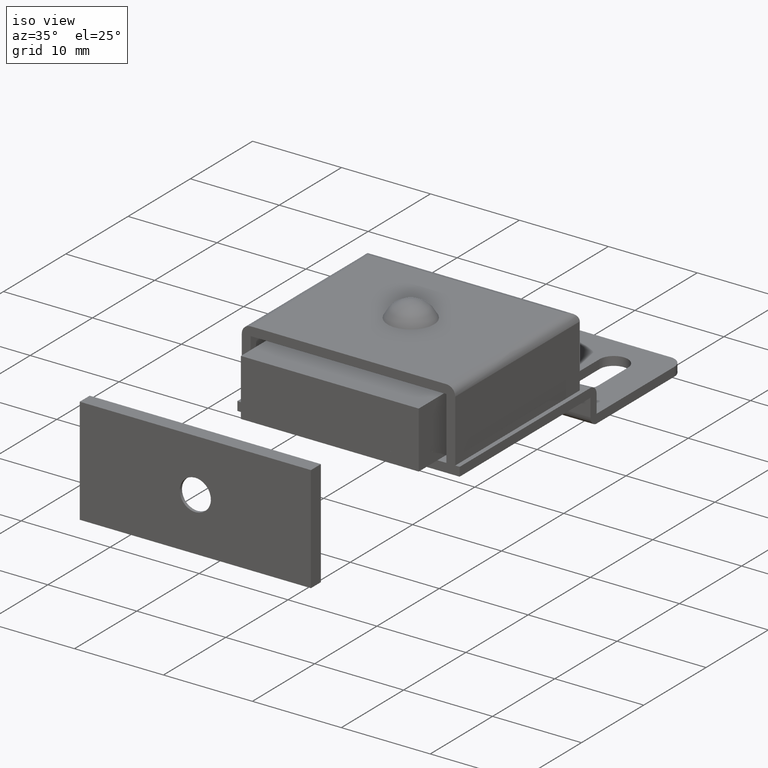
[diagram: clean part render]
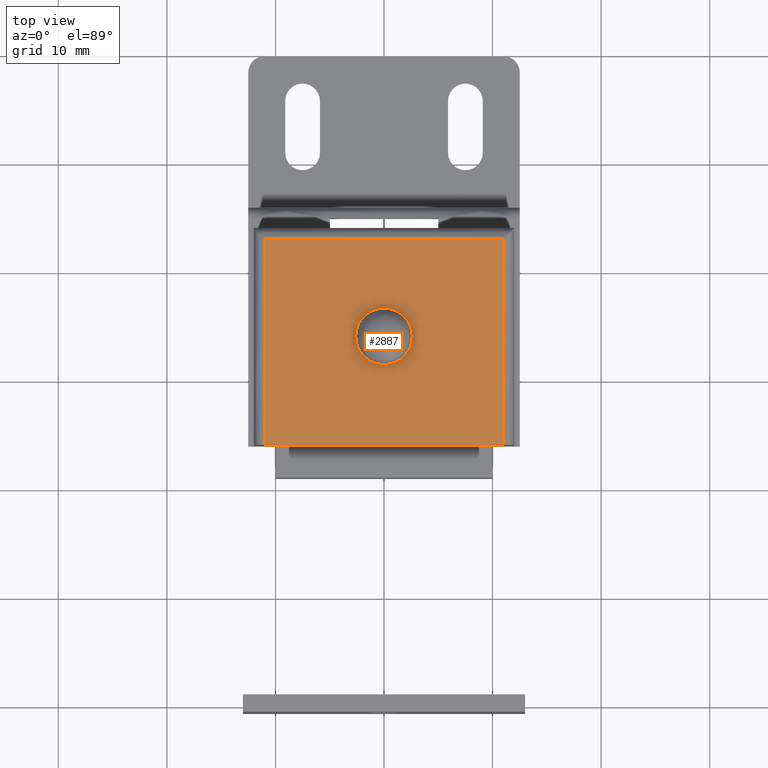
[diagram: tour spotlight — one face highlighted and labeled with its STEP entity id]
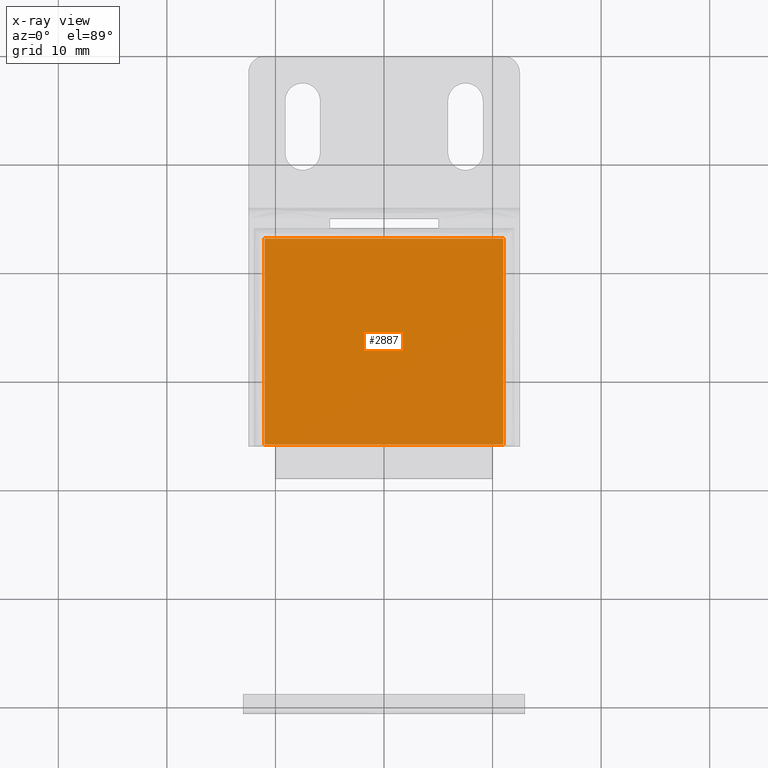
[diagram: x-ray of the same camera — body ghosted, this tour face saturated]
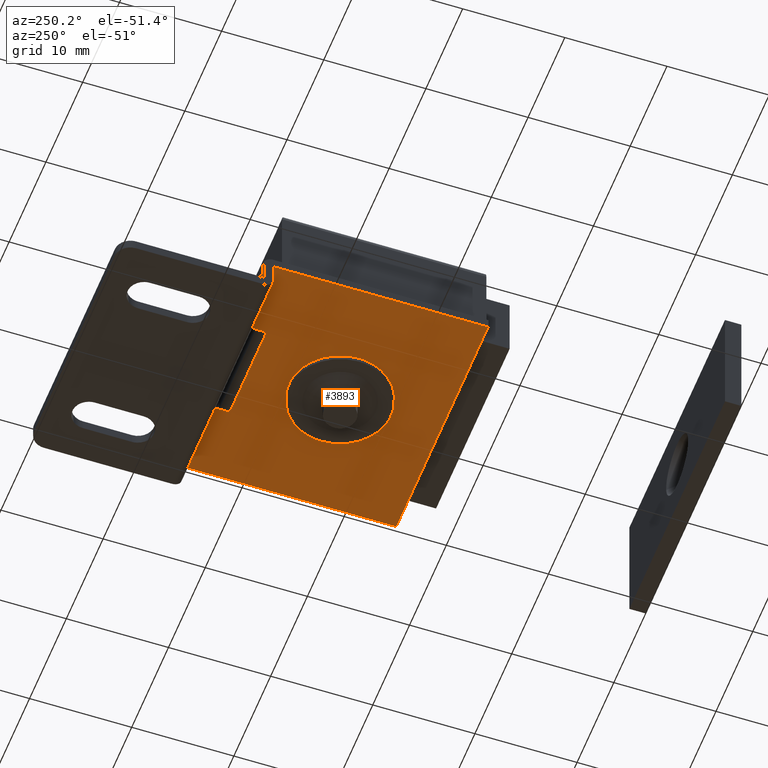
[diagram: tour spotlight — one face highlighted and labeled with its STEP entity id]
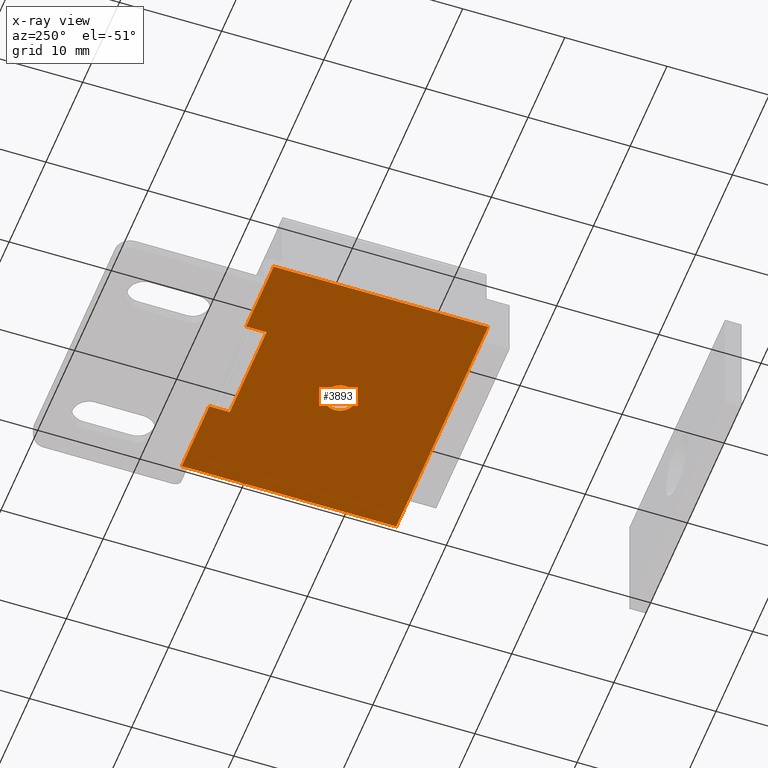
[diagram: x-ray of the same camera — body ghosted, this tour face saturated]
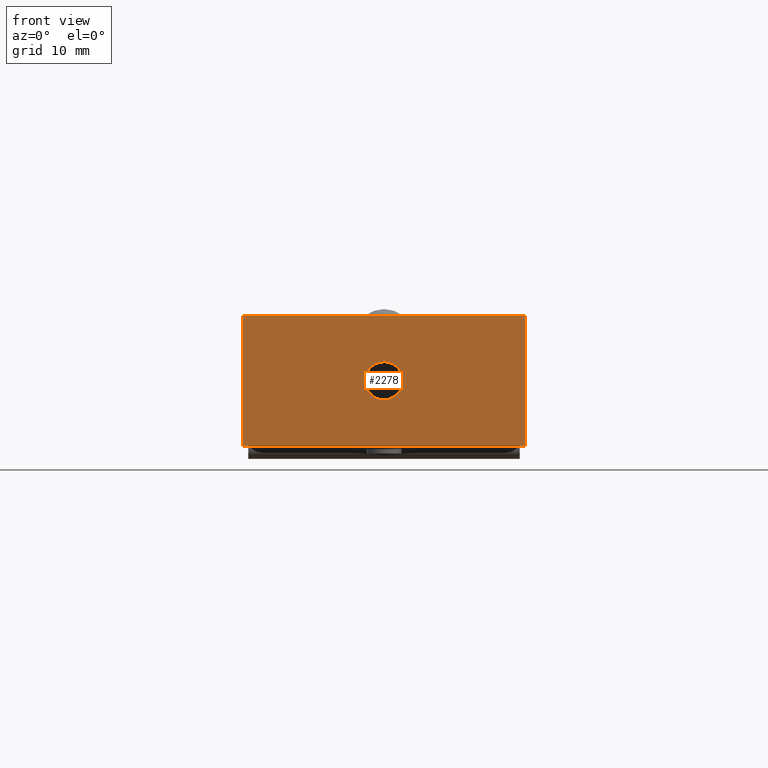
[diagram: tour spotlight — one face highlighted and labeled with its STEP entity id]
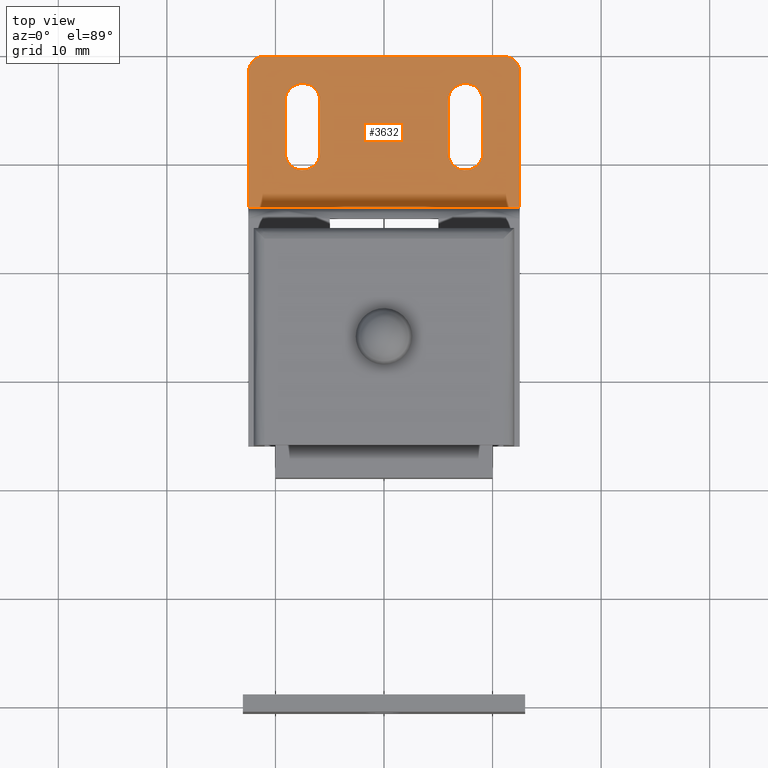
[diagram: tour spotlight — one face highlighted and labeled with its STEP entity id]
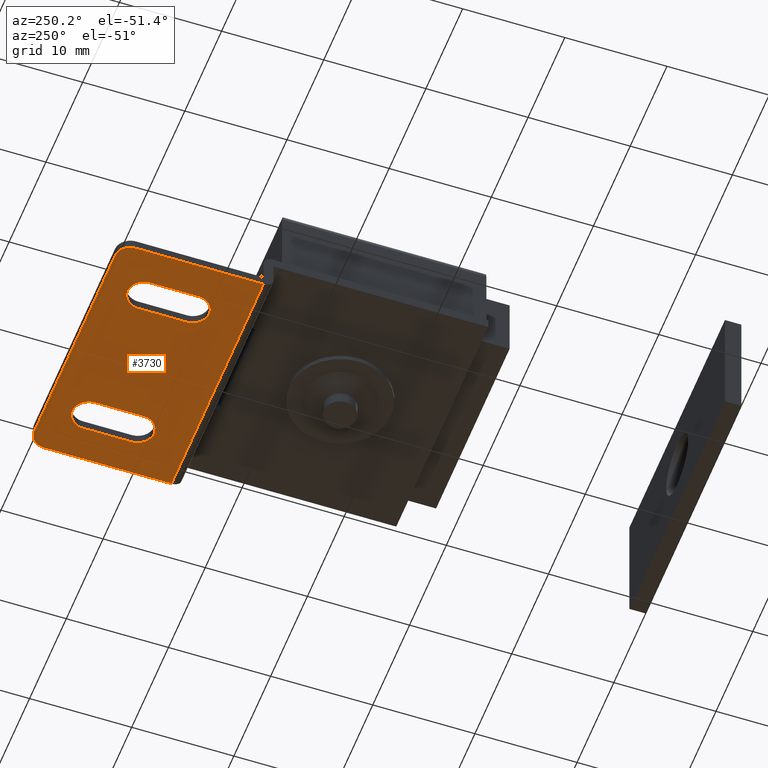
[diagram: tour spotlight — one face highlighted and labeled with its STEP entity id]
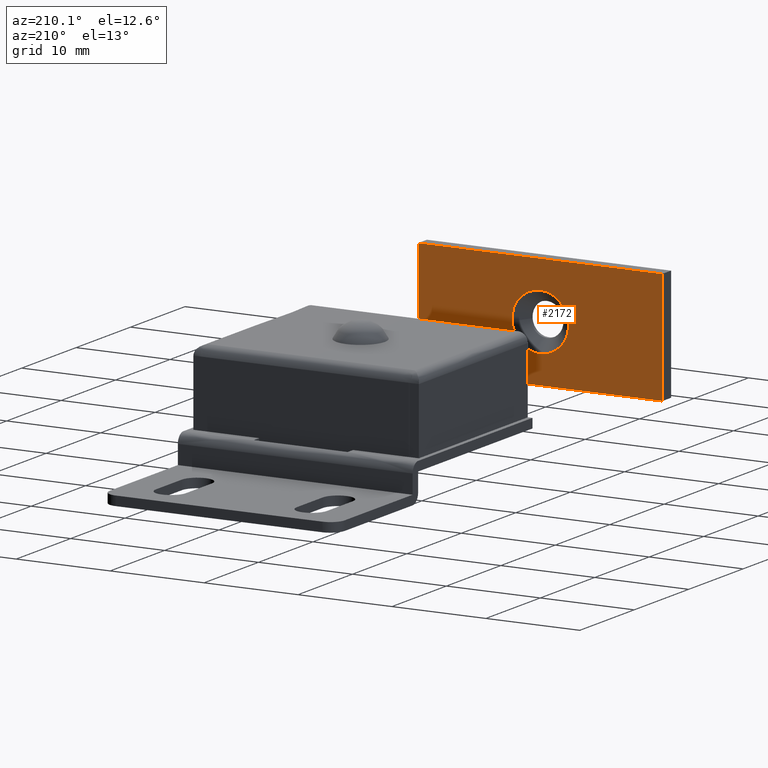
[diagram: tour spotlight — one face highlighted and labeled with its STEP entity id]
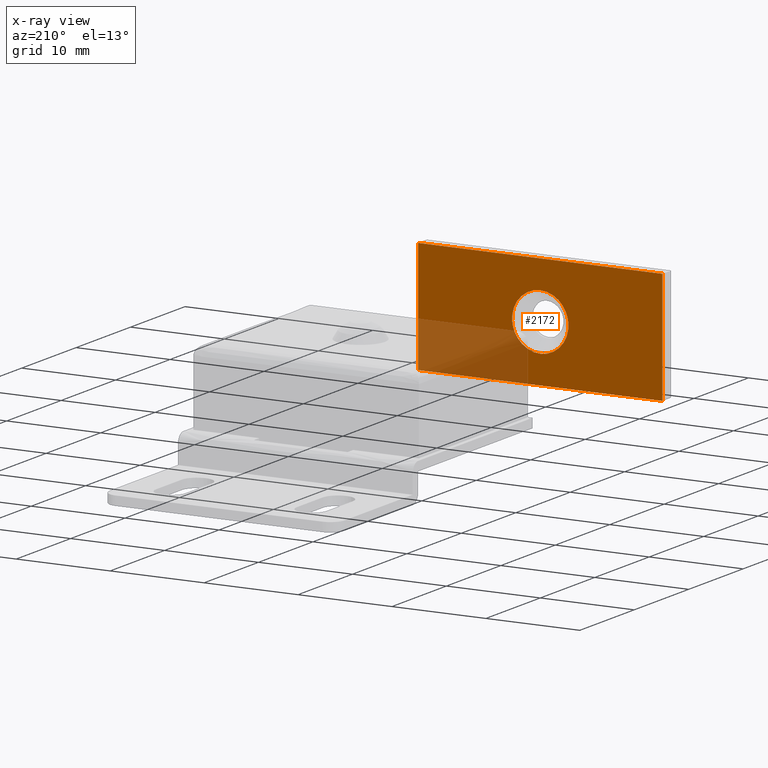
[diagram: x-ray of the same camera — body ghosted, this tour face saturated]
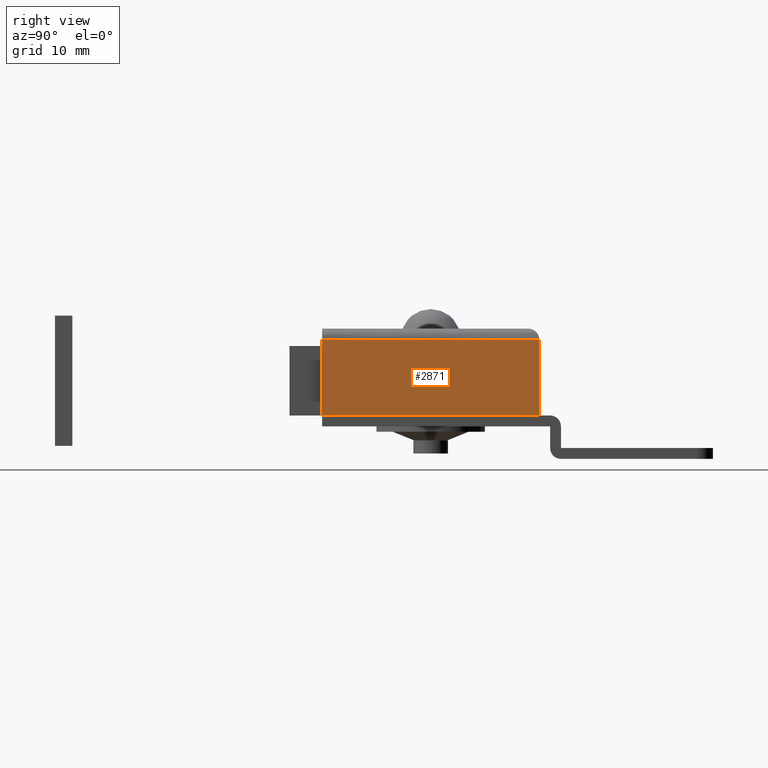
[diagram: tour spotlight — one face highlighted and labeled with its STEP entity id]
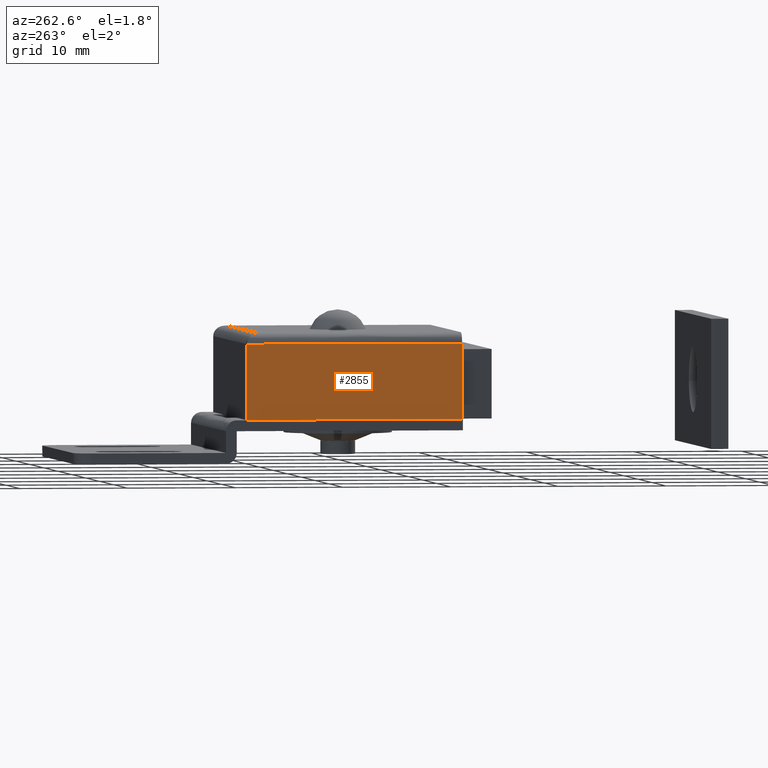
[diagram: tour spotlight — one face highlighted and labeled with its STEP entity id]
A machine part: a face-by-face anatomy tour. The part has 102 B-rep faces; the first image is the clean iso view, then the 8 largest visible faces are spotlighted one at a time (largest first), each with its STEP entity span.

Face 1 — top view, entity #2887. An x-ray twin of the same camera follows (body ghosted, this face saturated) — the face is partly hidden behind the body. In plain terms, the highlighted face is a freeform B-spline surface patch.
Definition (entity closure, byte-faithful):
#2603=CARTESIAN_POINT('',(11.0,-17.0,12.0));
#2604=VERTEX_POINT('',#2603);
#2639=CARTESIAN_POINT('',(-11.000002000000000,-17.0,12.0));
#2640=VERTEX_POINT('',#2639);
#2654=CARTESIAN_POINT('',(11.0,-17.0,12.0));
#2655=CARTESIAN_POINT('',(-11.000002000000000,-17.0,12.0));
#2656=QUASI_UNIFORM_CURVE('',1,(#2654,#2655),.UNSPECIFIED.,.F.,.U.);
#2657=EDGE_CURVE('',#2604,#2640,#2656,.T.);
#2676=CARTESIAN_POINT('',(-11.000001999999940,-36.0,12.0));
#2677=VERTEX_POINT('',#2676);
#2693=CARTESIAN_POINT('',(-11.000002000000000,-17.0,12.0));
#2694=CARTESIAN_POINT('',(-11.000001999999940,-36.0,12.0));
#2695=QUASI_UNIFORM_CURVE('',1,(#2693,#2694),.UNSPECIFIED.,.F.,.U.);
#2696=EDGE_CURVE('',#2640,#2677,#2695,.T.);
#2723=CARTESIAN_POINT('',(11.0,-36.0,12.0));
#2724=VERTEX_POINT('',#2723);
#2744=CARTESIAN_POINT('',(11.0,-36.0,12.0));
#2745=CARTESIAN_POINT('',(11.0,-17.0,12.0));
#2746=QUASI_UNIFORM_CURVE('',1,(#2744,#2745),.UNSPECIFIED.,.F.,.U.);
#2747=EDGE_CURVE('',#2724,#2604,#2746,.T.);
#2872=CARTESIAN_POINT('',(-12.098902057259730,-36.949049963174311,12.0));
#2873=CARTESIAN_POINT('',(12.098900647345770,-36.949049963174311,12.0));
#2874=CARTESIAN_POINT('',(-12.098902057259730,-16.050949527205969,12.0));
#2875=CARTESIAN_POINT('',(12.098900647345770,-16.050949527205969,12.0));
#2876=B_SPLINE_SURFACE_WITH_KNOTS('',1,1,((#2872,#2874),(#2873,#2875)),.UNSPECIFIED.,.F.,.F.,.U.,(2,2),(2,2),(0.0,24.197802704605490),(0.0,20.898100435968342),.UNSPECIFIED.);
#2877=CARTESIAN_POINT('',(11.0,-36.0,12.0));
#2878=CARTESIAN_POINT('',(-11.000001999999940,-36.0,12.0));
#2879=QUASI_UNIFORM_CURVE('',1,(#2877,#2878),.UNSPECIFIED.,.F.,.U.);
#2880=EDGE_CURVE('',#2724,#2677,#2879,.T.);
#2881=ORIENTED_EDGE('',*,*,#2880,.F.);
#2882=ORIENTED_EDGE('',*,*,#2747,.T.);
#2883=ORIENTED_EDGE('',*,*,#2657,.T.);
#2884=ORIENTED_EDGE('',*,*,#2696,.T.);
#2885=EDGE_LOOP('',(#2881,#2882,#2883,#2884));
#2886=FACE_OUTER_BOUND('',#2885,.T.);
#2887=ADVANCED_FACE('',(#2886),#2876,.T.);

Face 2 — auxiliary view, entity #3893. An x-ray twin of the same camera follows (body ghosted, this face saturated) — the face is partly hidden behind the body. In plain terms, the highlighted face is a freeform B-spline surface patch.
Definition (entity closure, byte-faithful):
#2958=CARTESIAN_POINT('',(1.500000000000000,-26.0,3.0));
#2959=VERTEX_POINT('',#2958);
#2960=CARTESIAN_POINT('',(0.117688643636623,-27.495376000596160,3.0));
#2961=VERTEX_POINT('',#2960);
#2962=CARTESIAN_POINT('',(1.500000000000000,-26.0,3.0));
#2963=CARTESIAN_POINT('',(1.500000000000000,-27.386585737445589,3.000000000000000));
#2964=CARTESIAN_POINT('',(0.117688643636623,-27.495376000596160,3.0));
#2972=(BOUNDED_CURVE()B_SPLINE_CURVE(2,(#2962,#2963,#2964),.UNSPECIFIED.,.F.,.U.)B_SPLINE_CURVE_WITH_KNOTS((3,3),(0.0,0.236331300627625),.UNSPECIFIED.)CURVE()GEOMETRIC_REPRESENTATION_ITEM()RATIONAL_B_SPLINE_CURVE((1.0,0.723120658611221,0.969723356161084))REPRESENTATION_ITEM(''));
#2973=EDGE_CURVE('',#2959,#2961,#2972,.T.);
#3014=CARTESIAN_POINT('',(-0.117688643636623,-24.504623999403830,3.0));
#3015=VERTEX_POINT('',#3014);
#3021=CARTESIAN_POINT('',(-0.117688643636623,-24.504623999403833,3.000000000000000));
#3022=CARTESIAN_POINT('',(-0.058935160534036,-24.500000000000000,3.000000000000001));
#3023=CARTESIAN_POINT('',(0.0,-24.500000000000000,3.0));
#3024=CARTESIAN_POINT('',(1.500000000000000,-24.500000000000004,3.0));
#3025=CARTESIAN_POINT('',(1.500000000000000,-26.0,3.0));
#3033=(BOUNDED_CURVE()B_SPLINE_CURVE(2,(#3021,#3022,#3023,#3024,#3025),.UNSPECIFIED.,.F.,.U.)B_SPLINE_CURVE_WITH_KNOTS((3,2,3),(0.736331300627625,0.750000000000000,1.0),.UNSPECIFIED.)CURVE()GEOMETRIC_REPRESENTATION_ITEM()RATIONAL_B_SPLINE_CURVE((0.969723356161084,0.983986122575326,1.0,0.707106781186548,1.0))REPRESENTATION_ITEM(''));
#3034=EDGE_CURVE('',#3015,#2959,#3033,.T.);
#3057=CARTESIAN_POINT('',(-1.500000000000000,-26.0,3.0));
#3058=VERTEX_POINT('',#3057);
#3059=CARTESIAN_POINT('',(0.117688643636623,-27.495376000596160,3.0));
#3060=CARTESIAN_POINT('',(0.058935160534036,-27.500000000000000,3.000000000000000));
#3061=CARTESIAN_POINT('',(0.0,-27.500000000000000,3.0));
#3062=CARTESIAN_POINT('',(-1.500000000000000,-27.500000000000004,3.0));
#3063=CARTESIAN_POINT('',(-1.500000000000000,-26.0,3.0));
#3071=(BOUNDED_CURVE()B_SPLINE_CURVE(2,(#3059,#3060,#3061,#3062,#3063),.UNSPECIFIED.,.F.,.U.)B_SPLINE_CURVE_WITH_KNOTS((3,2,3),(0.236331300627625,0.250000000000000,0.500000000000000),.UNSPECIFIED.)CURVE()GEOMETRIC_REPRESENTATION_ITEM()RATIONAL_B_SPLINE_CURVE((0.969723356161084,0.983986122575326,1.0,0.707106781186548,1.0))REPRESENTATION_ITEM(''));
#3072=EDGE_CURVE('',#2961,#3058,#3071,.T.);
#3074=CARTESIAN_POINT('',(-1.500000000000000,-26.0,3.0));
#3075=CARTESIAN_POINT('',(-1.500000000000000,-24.613414262554411,3.000000000000000));
#3076=CARTESIAN_POINT('',(-0.117688643636623,-24.504623999403833,3.000000000000000));
#3084=(BOUNDED_CURVE()B_SPLINE_CURVE(2,(#3074,#3075,#3076),.UNSPECIFIED.,.F.,.U.)B_SPLINE_CURVE_WITH_KNOTS((3,3),(0.500000000000000,0.736331300627625),.UNSPECIFIED.)CURVE()GEOMETRIC_REPRESENTATION_ITEM()RATIONAL_B_SPLINE_CURVE((1.0,0.723120658611221,0.969723356161084))REPRESENTATION_ITEM(''));
#3085=EDGE_CURVE('',#3058,#3015,#3084,.T.);
#3789=CARTESIAN_POINT('',(-12.500002000000000,-15.0,3.0));
#3790=VERTEX_POINT('',#3789);
#3797=CARTESIAN_POINT('',(12.500000000000000,-15.0,3.0));
#3798=VERTEX_POINT('',#3797);
#3804=CARTESIAN_POINT('',(5.0,-15.0,3.0));
#3805=VERTEX_POINT('',#3804);
#3806=CARTESIAN_POINT('',(12.500000000000000,-15.0,3.0));
#3807=CARTESIAN_POINT('',(5.0,-15.0,3.0));
#3808=QUASI_UNIFORM_CURVE('',1,(#3806,#3807),.UNSPECIFIED.,.F.,.U.);
#3809=EDGE_CURVE('',#3798,#3805,#3808,.T.);
#3825=CARTESIAN_POINT('',(-5.0,-15.0,3.0));
#3826=VERTEX_POINT('',#3825);
#3832=CARTESIAN_POINT('',(-5.0,-15.0,3.0));
#3833=CARTESIAN_POINT('',(-12.500002000000000,-15.0,3.0));
#3834=QUASI_UNIFORM_CURVE('',1,(#3832,#3833),.UNSPECIFIED.,.F.,.U.);
#3835=EDGE_CURVE('',#3826,#3790,#3834,.T.);
#3840=CARTESIAN_POINT('',(-13.748752051445150,-37.048949959297929,3.0));
#3841=CARTESIAN_POINT('',(13.748750721997450,-37.048949959297929,3.0));
#3842=CARTESIAN_POINT('',(-13.748752051445150,-13.951049477438181,3.0));
#3843=CARTESIAN_POINT('',(13.748750721997450,-13.951049477438181,3.0));
#3844=B_SPLINE_SURFACE_WITH_KNOTS('',1,1,((#3840,#3842),(#3841,#3843)),.UNSPECIFIED.,.F.,.F.,.U.,(2,2),(2,2),(0.0,27.497502773442601),(0.0,23.097900481859750),.UNSPECIFIED.);
#3845=CARTESIAN_POINT('',(5.0,-17.0,3.0));
#3846=VERTEX_POINT('',#3845);
#3847=CARTESIAN_POINT('',(-5.0,-17.0,3.0));
#3848=VERTEX_POINT('',#3847);
#3849=CARTESIAN_POINT('',(5.0,-17.0,3.0));
#3850=CARTESIAN_POINT('',(-5.0,-17.0,3.0));
#3851=QUASI_UNIFORM_CURVE('',1,(#3849,#3850),.UNSPECIFIED.,.F.,.U.);
#3852=EDGE_CURVE('',#3846,#3848,#3851,.T.);
#3853=ORIENTED_EDGE('',*,*,#3852,.F.);
#3854=CARTESIAN_POINT('',(5.0,-15.0,3.0));
#3855=CARTESIAN_POINT('',(5.0,-17.0,3.0));
#3856=QUASI_UNIFORM_CURVE('',1,(#3854,#3855),.UNSPECIFIED.,.F.,.U.);
#3857=EDGE_CURVE('',#3805,#3846,#3856,.T.);
#3858=ORIENTED_EDGE('',*,*,#3857,.F.);
#3859=ORIENTED_EDGE('',*,*,#3809,.F.);
#3860=CARTESIAN_POINT('',(12.500000000000000,-36.0,3.0));
#3861=VERTEX_POINT('',#3860);
#3862=CARTESIAN_POINT('',(12.500000000000000,-36.0,3.0));
#3863=CARTESIAN_POINT('',(12.500000000000000,-15.0,3.0));
#3864=QUASI_UNIFORM_CURVE('',1,(#3862,#3863),.UNSPECIFIED.,.F.,.U.);
#3865=EDGE_CURVE('',#3861,#3798,#3864,.T.);
#3866=ORIENTED_EDGE('',*,*,#3865,.F.);
#3867=CARTESIAN_POINT('',(-12.500002000000000,-36.0,3.0));
#3868=VERTEX_POINT('',#3867);
#3869=CARTESIAN_POINT('',(12.500000000000000,-36.0,3.0));
#3870=CARTESIAN_POINT('',(-12.500002000000000,-36.0,3.0));
#3871=QUASI_UNIFORM_CURVE('',1,(#3869,#3870),.UNSPECIFIED.,.F.,.U.);
#3872=EDGE_CURVE('',#3861,#3868,#3871,.T.);
#3873=ORIENTED_EDGE('',*,*,#3872,.T.);
#3874=CARTESIAN_POINT('',(-12.500002000000000,-36.0,3.0));
#3875=CARTESIAN_POINT('',(-12.500002000000000,-15.0,3.0));
#3876=QUASI_UNIFORM_CURVE('',1,(#3874,#3875),.UNSPECIFIED.,.F.,.U.);
#3877=EDGE_CURVE('',#3868,#3790,#3876,.T.);
#3878=ORIENTED_EDGE('',*,*,#3877,.T.);
#3879=ORIENTED_EDGE('',*,*,#3835,.F.);
#3880=CARTESIAN_POINT('',(-5.0,-17.0,3.0));
#3881=CARTESIAN_POINT('',(-5.0,-15.0,3.0));
#3882=QUASI_UNIFORM_CURVE('',1,(#3880,#3881),.UNSPECIFIED.,.F.,.U.);
#3883=EDGE_CURVE('',#3848,#3826,#3882,.T.);
#3884=ORIENTED_EDGE('',*,*,#3883,.F.);
#3885=EDGE_LOOP('',(#3853,#3858,#3859,#3866,#3873,#3878,#3879,#3884));
#3886=FACE_OUTER_BOUND('',#3885,.T.);
#3887=ORIENTED_EDGE('',*,*,#3085,.F.);
#3888=ORIENTED_EDGE('',*,*,#3072,.F.);
#3889=ORIENTED_EDGE('',*,*,#2973,.F.);
#3890=ORIENTED_EDGE('',*,*,#3034,.F.);
#3891=EDGE_LOOP('',(#3887,#3888,#3889,#3890));
#3892=FACE_BOUND('',#3891,.T.);
#3893=ADVANCED_FACE('',(#3886,#3892),#3844,.F.);

Face 3 — front view, entity #2278. In plain terms, the highlighted face is a freeform B-spline surface patch.
Definition (entity closure, byte-faithful):
#1837=CARTESIAN_POINT('',(1.746735897225612,-60.600005999999951,7.093162055607094));
#1838=VERTEX_POINT('',#1837);
#1839=CARTESIAN_POINT('',(0.0,-60.600005999999951,8.949997000000000));
#1840=VERTEX_POINT('',#1839);
#1841=CARTESIAN_POINT('',(1.746735897225612,-60.600005999999958,7.093162055607094));
#1842=CARTESIAN_POINT('',(1.750000000000000,-60.600005999999951,7.146529664123725));
#1843=CARTESIAN_POINT('',(1.750000000000000,-60.600005999999951,7.199997000000000));
#1844=CARTESIAN_POINT('',(1.750000000000000,-60.600005999999951,8.949997000000000));
#1845=CARTESIAN_POINT('',(0.0,-60.600005999999951,8.949997000000000));
#1853=(BOUNDED_CURVE()B_SPLINE_CURVE(2,(#1841,#1842,#1843,#1844,#1845),.UNSPECIFIED.,.F.,.U.)B_SPLINE_CURVE_WITH_KNOTS((3,2,3),(0.239332962221530,0.250000000000000,0.500000000000000),.UNSPECIFIED.)CURVE()GEOMETRIC_REPRESENTATION_ITEM()RATIONAL_B_SPLINE_CURVE((0.976072041629398,0.987502787879436,1.0,0.707106781186547,1.0))REPRESENTATION_ITEM(''));
#1854=EDGE_CURVE('',#1838,#1840,#1853,.T.);
#1856=CARTESIAN_POINT('',(-1.746735897225612,-60.600005999999951,7.306831944392906));
#1857=VERTEX_POINT('',#1856);
#1858=CARTESIAN_POINT('',(0.0,-60.600005999999951,8.949997000000000));
#1859=CARTESIAN_POINT('',(-1.646235616889599,-60.600005999999951,8.949997000000000));
#1860=CARTESIAN_POINT('',(-1.746735897225612,-60.600005999999958,7.306831944392907));
#1868=(BOUNDED_CURVE()B_SPLINE_CURVE(2,(#1858,#1859,#1860),.UNSPECIFIED.,.F.,.U.)B_SPLINE_CURVE_WITH_KNOTS((3,3),(0.500000000000000,0.739332962221530),.UNSPECIFIED.)CURVE()GEOMETRIC_REPRESENTATION_ITEM()RATIONAL_B_SPLINE_CURVE((1.0,0.719603993307111,0.976072041629398))REPRESENTATION_ITEM(''));
#1869=EDGE_CURVE('',#1840,#1857,#1868,.T.);
#1936=CARTESIAN_POINT('',(0.0,-60.600005999999951,5.449997000000000));
#1937=VERTEX_POINT('',#1936);
#1938=CARTESIAN_POINT('',(0.0,-60.600005999999951,5.449997000000000));
#1939=CARTESIAN_POINT('',(1.646235616889599,-60.600005999999951,5.449997000000001));
#1940=CARTESIAN_POINT('',(1.746735897225612,-60.600005999999958,7.093162055607094));
#1948=(BOUNDED_CURVE()B_SPLINE_CURVE(2,(#1938,#1939,#1940),.UNSPECIFIED.,.F.,.U.)B_SPLINE_CURVE_WITH_KNOTS((3,3),(0.0,0.239332962221530),.UNSPECIFIED.)CURVE()GEOMETRIC_REPRESENTATION_ITEM()RATIONAL_B_SPLINE_CURVE((1.0,0.719603993307111,0.976072041629398))REPRESENTATION_ITEM(''));
#1949=EDGE_CURVE('',#1937,#1838,#1948,.T.);
#1983=CARTESIAN_POINT('',(-1.746735897225612,-60.600005999999951,7.306831944392907));
#1984=CARTESIAN_POINT('',(-1.750000000000000,-60.600005999999965,7.253464335876275));
#1985=CARTESIAN_POINT('',(-1.750000000000000,-60.600005999999951,7.199997000000000));
#1986=CARTESIAN_POINT('',(-1.750000000000000,-60.600005999999951,5.449997000000000));
#1987=CARTESIAN_POINT('',(0.0,-60.600005999999951,5.449997000000000));
#1995=(BOUNDED_CURVE()B_SPLINE_CURVE(2,(#1983,#1984,#1985,#1986,#1987),.UNSPECIFIED.,.F.,.U.)B_SPLINE_CURVE_WITH_KNOTS((3,2,3),(0.739332962221530,0.750000000000000,1.0),.UNSPECIFIED.)CURVE()GEOMETRIC_REPRESENTATION_ITEM()RATIONAL_B_SPLINE_CURVE((0.976072041629398,0.987502787879436,1.0,0.707106781186547,1.0))REPRESENTATION_ITEM(''));
#1996=EDGE_CURVE('',#1857,#1937,#1995,.T.);
#2179=CARTESIAN_POINT('',(-13.0,-60.600005999999887,13.199997000000000));
#2180=VERTEX_POINT('',#2179);
#2186=CARTESIAN_POINT('',(13.0,-60.600005999999887,13.199997000000000));
#2187=VERTEX_POINT('',#2186);
#2188=CARTESIAN_POINT('',(13.0,-60.600005999999887,13.199997000000000));
#2189=CARTESIAN_POINT('',(-13.0,-60.600005999999887,13.199997000000000));
#2190=QUASI_UNIFORM_CURVE('',1,(#2188,#2189),.UNSPECIFIED.,.F.,.U.);
#2191=EDGE_CURVE('',#2187,#2180,#2190,.T.);
#2208=CARTESIAN_POINT('',(13.0,-60.600005999999887,1.199996999999910));
#2209=VERTEX_POINT('',#2208);
#2210=CARTESIAN_POINT('',(13.0,-60.600005999999887,1.199996999999910));
#2211=CARTESIAN_POINT('',(13.0,-60.600005999999887,13.199997000000000));
#2212=QUASI_UNIFORM_CURVE('',1,(#2210,#2211),.UNSPECIFIED.,.F.,.U.);
#2213=EDGE_CURVE('',#2209,#2187,#2212,.T.);
#2230=CARTESIAN_POINT('',(-13.0,-60.600005999999887,1.199996999999910));
#2231=VERTEX_POINT('',#2230);
#2232=CARTESIAN_POINT('',(-13.0,-60.600005999999887,1.199996999999910));
#2233=CARTESIAN_POINT('',(13.0,-60.600005999999887,1.199996999999910));
#2234=QUASI_UNIFORM_CURVE('',1,(#2232,#2233),.UNSPECIFIED.,.F.,.U.);
#2235=EDGE_CURVE('',#2231,#2209,#2234,.T.);
#2252=CARTESIAN_POINT('',(-13.0,-60.600005999999887,13.199997000000000));
#2253=CARTESIAN_POINT('',(-13.0,-60.600005999999887,1.199996999999910));
#2254=QUASI_UNIFORM_CURVE('',1,(#2252,#2253),.UNSPECIFIED.,.F.,.U.);
#2255=EDGE_CURVE('',#2180,#2231,#2254,.T.);
#2261=CARTESIAN_POINT('',(-14.298699949606959,-60.600005999999887,13.799396976741679));
#2262=CARTESIAN_POINT('',(14.298700646981301,-60.600005999999887,13.799396976741679));
#2263=CARTESIAN_POINT('',(-14.298699949606959,-60.600005999999887,0.600596701393152));
#2264=CARTESIAN_POINT('',(14.298700646981301,-60.600005999999887,0.600596701393152));
#2265=B_SPLINE_SURFACE_WITH_KNOTS('',1,1,((#2261,#2263),(#2262,#2264)),.UNSPECIFIED.,.F.,.F.,.U.,(2,2),(2,2),(0.0,28.597400596588258),(0.0,13.198800275348530),.UNSPECIFIED.);
#2266=ORIENTED_EDGE('',*,*,#2255,.T.);
#2267=ORIENTED_EDGE('',*,*,#2235,.T.);
#2268=ORIENTED_EDGE('',*,*,#2213,.T.);
#2269=ORIENTED_EDGE('',*,*,#2191,.T.);
#2270=EDGE_LOOP('',(#2266,#2267,#2268,#2269));
#2271=FACE_OUTER_BOUND('',#2270,.T.);
#2272=ORIENTED_EDGE('',*,*,#1869,.F.);
#2273=ORIENTED_EDGE('',*,*,#1854,.F.);
#2274=ORIENTED_EDGE('',*,*,#1949,.F.);
#2275=ORIENTED_EDGE('',*,*,#1996,.F.);
#2276=EDGE_LOOP('',(#2272,#2273,#2274,#2275));
#2277=FACE_BOUND('',#2276,.T.);
#2278=ADVANCED_FACE('',(#2271,#2277),#2265,.F.);

Face 4 — top view, entity #3632. In plain terms, the highlighted face is a freeform B-spline surface patch.
Definition (entity closure, byte-faithful):
#3129=CARTESIAN_POINT('',(9.099997999999999,-4.102505821343061,0.999999999999890));
#3130=VERTEX_POINT('',#3129);
#3143=CARTESIAN_POINT('',(9.099997999999999,-8.902523821342580,0.999999999999915));
#3144=VERTEX_POINT('',#3143);
#3150=CARTESIAN_POINT('',(9.099997999999999,-4.102505821343061,0.999999999999890));
#3151=CARTESIAN_POINT('',(9.099997999999999,-8.902523821342580,0.999999999999915));
#3152=QUASI_UNIFORM_CURVE('',1,(#3150,#3151),.UNSPECIFIED.,.F.,.U.);
#3153=EDGE_CURVE('',#3130,#3144,#3152,.T.);
#3199=CARTESIAN_POINT('',(5.900001000000001,-8.901782854111849,0.999999999999890));
#3200=VERTEX_POINT('',#3199);
#3206=CARTESIAN_POINT('',(9.099997999999999,-8.902523821342580,0.999999999999915));
#3207=CARTESIAN_POINT('',(9.099820871807671,-9.046389816877028,0.999999999999876));
#3208=CARTESIAN_POINT('',(9.068317391553897,-9.275182769020832,0.999999999999895));
#3209=CARTESIAN_POINT('',(8.951020876367924,-9.595516673373098,0.999999999999889));
#3210=CARTESIAN_POINT('',(8.813589662796073,-9.827429389118157,0.999999999999894));
#3211=CARTESIAN_POINT('',(8.630598555663809,-10.041784671757419,0.999999999999886));
#3212=CARTESIAN_POINT('',(8.400496951971929,-10.237528643521440,0.999999999999897));
#3213=CARTESIAN_POINT('',(8.109861675614372,-10.392626563201761,0.999999999999878));
#3214=CARTESIAN_POINT('',(7.812850052407559,-10.476602872750201,0.999999999999907));
#3215=CARTESIAN_POINT('',(7.513066253831764,-10.509764857999420,0.999999999999864));
#3216=CARTESIAN_POINT('',(7.184923505677737,-10.483501023494860,0.999999999999915));
#3217=CARTESIAN_POINT('',(6.827866356053756,-10.367985261669631,0.999999999999875));
#3218=CARTESIAN_POINT('',(6.535255909629839,-10.190231777016390,0.999999999999901));
#3219=CARTESIAN_POINT('',(6.304354904864532,-9.975888222319833,0.999999999999925));
#3220=CARTESIAN_POINT('',(6.114866867973176,-9.723973975503885,0.999999999999867));
#3221=CARTESIAN_POINT('',(5.947889871748584,-9.365968358648264,0.999999999999907));
#3222=CARTESIAN_POINT('',(5.900089378964973,-9.071817291087845,0.999999999999885));
#3223=CARTESIAN_POINT('',(5.900001000000001,-8.901782854111849,0.999999999999890));
#3224=B_SPLINE_CURVE_WITH_KNOTS('',3,(#3206,#3207,#3208,#3209,#3210,#3211,#3212,#3213,#3214,#3215,#3216,#3217,#3218,#3219,#3220,#3221,#3222,#3223),.UNSPECIFIED.,.F.,.U.,(4,1,1,1,1,1,1,1,1,1,1,1,1,1,1,4),(0.000000146276514,0.431580902580179,0.686629758117082,1.020142479972553,1.235947527819700,1.530228634373864,1.922601862040750,2.216861311987671,2.452281420515639,2.824999259385126,3.197764027181892,3.570509114899165,3.845171156686052,4.139452530984162,4.512192054012317,5.022261027141370),.UNSPECIFIED.);
#3225=EDGE_CURVE('',#3144,#3200,#3224,.T.);
#3243=CARTESIAN_POINT('',(5.900001000000001,-4.101764854110971,0.999999999999890));
#3244=VERTEX_POINT('',#3243);
#3250=CARTESIAN_POINT('',(5.900001000000001,-8.901782854111849,0.999999999999890));
#3251=CARTESIAN_POINT('',(5.900001000000001,-4.101764854110971,0.999999999999890));
#3252=QUASI_UNIFORM_CURVE('',1,(#3250,#3251),.UNSPECIFIED.,.F.,.U.);
#3253=EDGE_CURVE('',#3200,#3244,#3252,.T.);
#3299=CARTESIAN_POINT('',(5.900001000000001,-4.101764854110971,0.999999999999890));
#3300=CARTESIAN_POINT('',(5.899727001335189,-3.937985943822921,0.999999999999896));
#3301=CARTESIAN_POINT('',(5.935081740630326,-3.708730972368753,0.999999999999883));
#3302=CARTESIAN_POINT('',(6.055309560461657,-3.396348892101572,0.999999999999893));
#3303=CARTESIAN_POINT('',(6.197649160470382,-3.151707462121520,0.999999999999888));
#3304=CARTESIAN_POINT('',(6.390853765741641,-2.935702806116950,0.999999999999884));
#3305=CARTESIAN_POINT('',(6.632886057900922,-2.744282483168984,0.999999999999895));
#3306=CARTESIAN_POINT('',(6.947948233181777,-2.578201813897969,0.999999999999900));
#3307=CARTESIAN_POINT('',(7.335616724690610,-2.491184142414321,0.999999999999866));
#3308=CARTESIAN_POINT('',(7.717461502966176,-2.503044234072732,0.999999999999914));
#3309=CARTESIAN_POINT('',(7.998969194659307,-2.571864843100796,0.999999999999875));
#3310=CARTESIAN_POINT('',(8.270345696642677,-2.688380704040175,0.999999999999897));
#3311=CARTESIAN_POINT('',(8.540929036203231,-2.864659288743419,0.999999999999890));
#3312=CARTESIAN_POINT('',(8.807667277793339,-3.148791406688559,0.999999999999882));
#3313=CARTESIAN_POINT('',(8.988669620844853,-3.478608476531418,0.999999999999907));
#3314=CARTESIAN_POINT('',(9.081714625841066,-3.801155370530849,0.999999999999869));
#3315=CARTESIAN_POINT('',(9.100161760779610,-4.004251063597915,0.999999999999863));
#3316=CARTESIAN_POINT('',(9.099997999999999,-4.102505821343061,0.999999999999890));
#3317=B_SPLINE_CURVE_WITH_KNOTS('',3,(#3299,#3300,#3301,#3302,#3303,#3304,#3305,#3306,#3307,#3308,#3309,#3310,#3311,#3312,#3313,#3314,#3315,#3316),.UNSPECIFIED.,.F.,.U.,(4,1,1,1,1,1,1,1,1,1,1,1,1,1,1,4),(0.000000119033451,0.491298527336037,0.687818192618438,1.002253636411213,1.336334990422152,1.552508060589529,1.925886995335932,2.397534542452180,2.731626501168354,3.065711612171165,3.262226504042067,3.615945084742921,4.028648586954193,4.421689287993845,4.736132333937730,5.030898543473447),.UNSPECIFIED.);
#3318=EDGE_CURVE('',#3244,#3130,#3317,.T.);
#3343=CARTESIAN_POINT('',(-9.099997999999999,-4.102505821343065,0.999999999999890));
#3344=VERTEX_POINT('',#3343);
#3373=CARTESIAN_POINT('',(-5.900001000000001,-4.101764854110971,0.999999999999890));
#3374=VERTEX_POINT('',#3373);
#3380=CARTESIAN_POINT('',(-9.099997999999999,-4.102505821343065,0.999999999999890));
#3381=CARTESIAN_POINT('',(-9.100161971927278,-4.004246924563049,0.999999999999890));
#3382=CARTESIAN_POINT('',(-9.082306129076967,-3.807703701317489,0.999999999999891));
#3383=CARTESIAN_POINT('',(-9.000211577913914,-3.516441992239068,0.999999999999890));
#3384=CARTESIAN_POINT('',(-8.873241479164783,-3.263480306565369,0.999999999999890));
#3385=CARTESIAN_POINT('',(-8.681798562070320,-3.004742158509475,0.999999999999891));
#3386=CARTESIAN_POINT('',(-8.445767588833913,-2.793082299939682,0.999999999999890));
#3387=CARTESIAN_POINT('',(-8.129973267718844,-2.616474472057035,0.999999999999889));
#3388=CARTESIAN_POINT('',(-7.789863424102748,-2.510805822874103,0.999999999999906));
#3389=CARTESIAN_POINT('',(-7.467062504337457,-2.490900675099032,0.999999999999844));
#3390=CARTESIAN_POINT('',(-7.173943266749083,-2.527036439636595,0.999999999999922));
#3391=CARTESIAN_POINT('',(-6.901783922343982,-2.604134405256092,0.999999999999871));
#3392=CARTESIAN_POINT('',(-6.632707971149143,-2.743806111662399,0.999999999999891));
#3393=CARTESIAN_POINT('',(-6.395614434418090,-2.931331342242200,0.999999999999888));
#3394=CARTESIAN_POINT('',(-6.202642903160493,-3.147081639455772,0.999999999999893));
#3395=CARTESIAN_POINT('',(-6.064059368770042,-3.378658052090526,0.999999999999887));
#3396=CARTESIAN_POINT('',(-5.937567954043246,-3.695635472449092,0.999999999999896));
#3397=CARTESIAN_POINT('',(-5.899705869148679,-3.931433050767203,0.999999999999865));
#3398=CARTESIAN_POINT('',(-5.900001000000001,-4.101764854110971,0.999999999999890));
#3399=B_SPLINE_CURVE_WITH_KNOTS('',3,(#3380,#3381,#3382,#3383,#3384,#3385,#3386,#3387,#3388,#3389,#3390,#3391,#3392,#3393,#3394,#3395,#3396,#3397,#3398),.UNSPECIFIED.,.F.,.U.,(4,1,1,1,1,1,1,1,1,1,1,1,1,1,1,1,4),(0.000000119001513,0.294777453822920,0.589558045209261,0.903991642310102,1.139816142085199,1.552508060567527,1.847266568547461,2.220668665888731,2.613709347053644,2.810230001341733,3.105011671925862,3.458725962300271,3.714206097083348,4.008992425741448,4.323428909991306,4.519949488968991,5.030898543473566),.UNSPECIFIED.);
#3400=EDGE_CURVE('',#3344,#3374,#3399,.T.);
#3418=CARTESIAN_POINT('',(-5.900001000000001,-8.901782854111859,0.999999999999890));
#3419=VERTEX_POINT('',#3418);
#3425=CARTESIAN_POINT('',(-5.900001000000001,-4.101764854110971,0.999999999999890));
#3426=CARTESIAN_POINT('',(-5.900001000000001,-8.901782854111859,0.999999999999890));
#3427=QUASI_UNIFORM_CURVE('',1,(#3425,#3426),.UNSPECIFIED.,.F.,.U.);
#3428=EDGE_CURVE('',#3374,#3419,#3427,.T.);
#3476=CARTESIAN_POINT('',(-9.099997999999999,-8.902523821342589,0.999999999999890));
#3477=VERTEX_POINT('',#3476);
#3483=CARTESIAN_POINT('',(-5.900001000000001,-8.901782854111859,0.999999999999890));
#3484=CARTESIAN_POINT('',(-5.900112205684917,-9.045647173836693,0.999999999999889));
#3485=CARTESIAN_POINT('',(-5.937764207456580,-9.320231062045227,0.999999999999893));
#3486=CARTESIAN_POINT('',(-6.076690264101873,-9.654913307365828,0.999999999999890));
#3487=CARTESIAN_POINT('',(-6.264458673294567,-9.931842448482064,0.999999999999890));
#3488=CARTESIAN_POINT('',(-6.497161086219151,-10.164371977277860,0.999999999999893));
#3489=CARTESIAN_POINT('',(-6.776410807521602,-10.338693185027759,0.999999999999888));
#3490=CARTESIAN_POINT('',(-7.077038192367818,-10.452510361334710,0.999999999999895));
#3491=CARTESIAN_POINT('',(-7.368231541991700,-10.504909118783520,0.999999999999879));
#3492=CARTESIAN_POINT('',(-7.643993999416039,-10.499885347227011,0.999999999999892));
#3493=CARTESIAN_POINT('',(-7.908672707051840,-10.454063669524521,0.999999999999889));
#3494=CARTESIAN_POINT('',(-8.194551809034490,-10.355908977835719,0.999999999999891));
#3495=CARTESIAN_POINT('',(-8.525689034399100,-10.152248396473350,0.999999999999889));
#3496=CARTESIAN_POINT('',(-8.797415441464390,-9.863805953590720,0.999999999999890));
#3497=CARTESIAN_POINT('',(-8.986928336000966,-9.525304987311364,0.999999999999890));
#3498=CARTESIAN_POINT('',(-9.080961741264142,-9.209835038835397,0.999999999999890));
#3499=CARTESIAN_POINT('',(-9.099856251054463,-8.994067202908878,0.999999999999891));
#3500=CARTESIAN_POINT('',(-9.099997999999999,-8.902523821342589,0.999999999999890));
#3501=B_SPLINE_CURVE_WITH_KNOTS('',3,(#3483,#3484,#3485,#3486,#3487,#3488,#3489,#3490,#3491,#3492,#3493,#3494,#3495,#3496,#3497,#3498,#3499,#3500),.UNSPECIFIED.,.F.,.U.,(4,1,1,1,1,1,1,1,1,1,1,1,1,1,1,4),(0.000000146270338,0.431580902574354,0.823955114561569,1.079001339083381,1.432134731649889,1.804878982535625,2.059916905362180,2.393428568423036,2.687690679301108,2.883857407106270,3.197764027180230,3.590131439608761,4.041358844265442,4.374873202469058,4.747627279468157,5.022261027141351),.UNSPECIFIED.);
#3502=EDGE_CURVE('',#3419,#3477,#3501,.T.);
#3519=CARTESIAN_POINT('',(-9.099997999999999,-8.902523821342589,0.999999999999890));
#3520=CARTESIAN_POINT('',(-9.099997999999999,-4.102505821343065,0.999999999999890));
#3521=QUASI_UNIFORM_CURVE('',1,(#3519,#3520),.UNSPECIFIED.,.F.,.U.);
#3522=EDGE_CURVE('',#3477,#3344,#3521,.T.);
#3532=CARTESIAN_POINT('',(-12.500002000000000,-14.0,0.999999999999915));
#3533=VERTEX_POINT('',#3532);
#3548=CARTESIAN_POINT('',(12.500000000000000,-14.0,0.999999999999915));
#3549=VERTEX_POINT('',#3548);
#3555=CARTESIAN_POINT('',(12.500000000000000,-14.0,0.999999999999915));
#3556=CARTESIAN_POINT('',(-12.500002000000000,-14.0,0.999999999999915));
#3557=QUASI_UNIFORM_CURVE('',1,(#3555,#3556),.UNSPECIFIED.,.F.,.U.);
#3558=EDGE_CURVE('',#3549,#3533,#3557,.T.);
#3563=CARTESIAN_POINT('',(13.748750051445150,-14.699299972865290,0.999999999999915));
#3564=CARTESIAN_POINT('',(-13.748752721997450,-14.699299972865290,0.999999999999915));
#3565=CARTESIAN_POINT('',(13.748750051445150,0.699300348374546,0.999999999999915));
#3566=CARTESIAN_POINT('',(-13.748752721997450,0.699300348374546,0.999999999999915));
#3567=B_SPLINE_SURFACE_WITH_KNOTS('',1,1,((#3563,#3565),(#3564,#3566)),.UNSPECIFIED.,.F.,.F.,.U.,(2,2),(2,2),(0.0,27.497502773442601),(0.0,15.398600321239829),.UNSPECIFIED.);
#3568=CARTESIAN_POINT('',(11.0,0.0,0.999999999999915));
#3569=VERTEX_POINT('',#3568);
#3570=CARTESIAN_POINT('',(-11.000001999999940,0.0,0.999999999999915));
#3571=VERTEX_POINT('',#3570);
#3572=CARTESIAN_POINT('',(11.0,0.0,0.999999999999915));
#3573=CARTESIAN_POINT('',(-11.000001999999940,0.0,0.999999999999915));
#3574=QUASI_UNIFORM_CURVE('',1,(#3572,#3573),.UNSPECIFIED.,.F.,.U.);
#3575=EDGE_CURVE('',#3569,#3571,#3574,.T.);
#3576=ORIENTED_EDGE('',*,*,#3575,.T.);
#3577=CARTESIAN_POINT('',(-12.500002000000000,-1.500000000000000,0.999999999999915));
#3578=VERTEX_POINT('',#3577);
#3579=CARTESIAN_POINT('',(-11.000001999999940,0.0,0.999999999999915));
#3580=CARTESIAN_POINT('',(-12.500001999999940,0.0,0.999999999999915));
#3581=CARTESIAN_POINT('',(-12.500001999999940,-1.500000000000000,0.999999999999915));
#3589=(BOUNDED_CURVE()B_SPLINE_CURVE(2,(#3579,#3580,#3581),.UNSPECIFIED.,.F.,.U.)CURVE()GEOMETRIC_REPRESENTATION_ITEM()QUASI_UNIFORM_CURVE()RATIONAL_B_SPLINE_CURVE((1.0,0.707106781186548,1.0))REPRESENTATION_ITEM(''));
#3590=EDGE_CURVE('',#3571,#3578,#3589,.T.);
#3591=ORIENTED_EDGE('',*,*,#3590,.T.);
#3592=CARTESIAN_POINT('',(-12.500002000000000,-1.500000000000000,0.999999999999915));
#3593=CARTESIAN_POINT('',(-12.500002000000000,-14.0,0.999999999999915));
#3594=QUASI_UNIFORM_CURVE('',1,(#3592,#3593),.UNSPECIFIED.,.F.,.U.);
#3595=EDGE_CURVE('',#3578,#3533,#3594,.T.);
#3596=ORIENTED_EDGE('',*,*,#3595,.T.);
#3597=ORIENTED_EDGE('',*,*,#3558,.F.);
#3598=CARTESIAN_POINT('',(12.500000000000000,-1.500000000000000,0.999999999999915));
#3599=VERTEX_POINT('',#3598);
#3600=CARTESIAN_POINT('',(12.500000000000000,-1.500000000000000,0.999999999999915));
#3601=CARTESIAN_POINT('',(12.500000000000000,-14.0,0.999999999999915));
#3602=QUASI_UNIFORM_CURVE('',1,(#3600,#3601),.UNSPECIFIED.,.F.,.U.);
#3603=EDGE_CURVE('',#3599,#3549,#3602,.T.);
#3604=ORIENTED_EDGE('',*,*,#3603,.F.);
#3605=CARTESIAN_POINT('',(12.500000000000000,-1.500000000000000,0.999999999999915));
#3606=CARTESIAN_POINT('',(12.499999999999996,0.0,0.999999999999915));
#3607=CARTESIAN_POINT('',(11.0,0.0,0.999999999999915));
#3615=(BOUNDED_CURVE()B_SPLINE_CURVE(2,(#3605,#3606,#3607),.UNSPECIFIED.,.F.,.U.)CURVE()GEOMETRIC_REPRESENTATION_ITEM()QUASI_UNIFORM_CURVE()RATIONAL_B_SPLINE_CURVE((1.0,0.707106781186548,1.0))REPRESENTATION_ITEM(''));
#3616=EDGE_CURVE('',#3599,#3569,#3615,.T.);
#3617=ORIENTED_EDGE('',*,*,#3616,.T.);
#3618=EDGE_LOOP('',(#3576,#3591,#3596,#3597,#3604,#3617));
#3619=FACE_OUTER_BOUND('',#3618,.T.);
#3620=ORIENTED_EDGE('',*,*,#3502,.T.);
#3621=ORIENTED_EDGE('',*,*,#3522,.T.);
#3622=ORIENTED_EDGE('',*,*,#3400,.T.);
#3623=ORIENTED_EDGE('',*,*,#3428,.T.);
#3624=EDGE_LOOP('',(#3620,#3621,#3622,#3623));
#3625=FACE_BOUND('',#3624,.T.);
#3626=ORIENTED_EDGE('',*,*,#3253,.T.);
#3627=ORIENTED_EDGE('',*,*,#3318,.T.);
#3628=ORIENTED_EDGE('',*,*,#3153,.T.);
#3629=ORIENTED_EDGE('',*,*,#3225,.T.);
#3630=EDGE_LOOP('',(#3626,#3627,#3628,#3629));
#3631=FACE_BOUND('',#3630,.T.);
#3632=ADVANCED_FACE('',(#3619,#3625,#3631),#3567,.F.);

Face 5 — auxiliary view, entity #3730. In plain terms, the highlighted face is a freeform B-spline surface patch.
Definition (entity closure, byte-faithful):
#3127=CARTESIAN_POINT('',(9.099997999999999,-4.102505821343061,0.0));
#3128=VERTEX_POINT('',#3127);
#3136=CARTESIAN_POINT('',(9.099997999999999,-8.902523821342580,0.0));
#3137=VERTEX_POINT('',#3136);
#3138=CARTESIAN_POINT('',(9.099997999999999,-8.902523821342580,0.0));
#3139=CARTESIAN_POINT('',(9.099997999999999,-4.102505821343061,0.0));
#3140=QUASI_UNIFORM_CURVE('',1,(#3138,#3139),.UNSPECIFIED.,.F.,.U.);
#3141=EDGE_CURVE('',#3137,#3128,#3140,.T.);
#3177=CARTESIAN_POINT('',(5.900001000000001,-8.901782854111849,0.0));
#3178=VERTEX_POINT('',#3177);
#3179=CARTESIAN_POINT('',(5.900001000000001,-8.901782854111849,0.0));
#3180=CARTESIAN_POINT('',(5.900114566224478,-9.012944089999042,0.0));
#3181=CARTESIAN_POINT('',(5.926378917546117,-9.261413152005842,0.0));
#3182=CARTESIAN_POINT('',(6.044538383892370,-9.597285243782261,0.0));
#3183=CARTESIAN_POINT('',(6.255685253820950,-9.930263976206263,0.0));
#3184=CARTESIAN_POINT('',(6.512554627222933,-10.177659448119620,0.0));
#3185=CARTESIAN_POINT('',(6.823578394435885,-10.361338443068091,0.0));
#3186=CARTESIAN_POINT('',(7.158596661902936,-10.478908260313039,0.0));
#3187=CARTESIAN_POINT('',(7.572322839571414,-10.519770271209669,0.0));
#3188=CARTESIAN_POINT('',(7.949261192535738,-10.449715190468231,0.0));
#3189=CARTESIAN_POINT('',(8.262714833862306,-10.315508512809799,0.0));
#3190=CARTESIAN_POINT('',(8.510699146624798,-10.154458899023600,0.0));
#3191=CARTESIAN_POINT('',(8.758851898027386,-9.909790206224431,0.0));
#3192=CARTESIAN_POINT('',(8.924804949768134,-9.648353579368271,0.0));
#3193=CARTESIAN_POINT('',(9.061466552780626,-9.307846180538714,0.0));
#3194=CARTESIAN_POINT('',(9.099826204942183,-9.072563153274901,0.0));
#3195=CARTESIAN_POINT('',(9.099997999999999,-8.902523821342580,0.0));
#3196=B_SPLINE_CURVE_WITH_KNOTS('',3,(#3179,#3180,#3181,#3182,#3183,#3184,#3185,#3186,#3187,#3188,#3189,#3190,#3191,#3192,#3193,#3194,#3195),.UNSPECIFIED.,.F.,.U.,(4,1,1,1,1,1,1,1,1,1,1,1,1,1,4),(0.000000146278937,0.333487784328670,0.745488982055477,1.059378693467828,1.510603406484307,1.804878982540201,2.138407109206372,2.569983978398491,3.040808084719461,3.276227540664533,3.590131439610119,3.923642496428274,4.316011135894533,4.512192054012283,5.022261027141372),.UNSPECIFIED.);
#3197=EDGE_CURVE('',#3178,#3137,#3196,.T.);
#3236=CARTESIAN_POINT('',(5.900001000000001,-4.101764854110971,0.0));
#3237=VERTEX_POINT('',#3236);
#3238=CARTESIAN_POINT('',(5.900001000000001,-4.101764854110971,0.0));
#3239=CARTESIAN_POINT('',(5.900001000000001,-8.901782854111849,0.0));
#3240=QUASI_UNIFORM_CURVE('',1,(#3238,#3239),.UNSPECIFIED.,.F.,.U.);
#3241=EDGE_CURVE('',#3237,#3178,#3240,.T.);
#3277=CARTESIAN_POINT('',(9.099997999999999,-4.102505821343061,0.0));
#3278=CARTESIAN_POINT('',(9.100315479986799,-3.945282993947190,0.0));
#3279=CARTESIAN_POINT('',(9.066530111243978,-3.716009999182018,0.0));
#3280=CARTESIAN_POINT('',(8.939072224650554,-3.378130859097954,0.0));
#3281=CARTESIAN_POINT('',(8.759373565918917,-3.085726499658783,0.0));
#3282=CARTESIAN_POINT('',(8.498016750377872,-2.833393471880360,0.0));
#3283=CARTESIAN_POINT('',(8.173494079762909,-2.633105228927321,0.0));
#3284=CARTESIAN_POINT('',(7.828755775080788,-2.516642303499262,0.0));
#3285=CARTESIAN_POINT('',(7.493530396314841,-2.491880262758789,0.0));
#3286=CARTESIAN_POINT('',(7.199608758511723,-2.520775433292890,0.0));
#3287=CARTESIAN_POINT('',(6.938923399324181,-2.591206261656551,0.0));
#3288=CARTESIAN_POINT('',(6.619853911408979,-2.746949926317578,0.0));
#3289=CARTESIAN_POINT('',(6.337230817350798,-2.976150557456139,0.0));
#3290=CARTESIAN_POINT('',(6.125420146857947,-3.262179146260265,0.0));
#3291=CARTESIAN_POINT('',(6.003233231812541,-3.516974181088828,0.0));
#3292=CARTESIAN_POINT('',(5.921477900781518,-3.787325428919693,0.0));
#3293=CARTESIAN_POINT('',(5.899845037364488,-3.983854449195414,0.0));
#3294=CARTESIAN_POINT('',(5.900001000000001,-4.101764854110971,0.0));
#3295=B_SPLINE_CURVE_WITH_KNOTS('',3,(#3277,#3278,#3279,#3280,#3281,#3282,#3283,#3284,#3285,#3286,#3287,#3288,#3289,#3290,#3291,#3292,#3293,#3294),.UNSPECIFIED.,.F.,.U.,(4,1,1,1,1,1,1,1,1,1,1,1,1,1,1,4),(0.000000119021886,0.471637506293278,0.687818192608152,1.080859478317333,1.493550767589794,1.768672163225421,2.220668665899899,2.574406161360332,2.770929674305915,3.105011671933511,3.380124938997922,3.832128195821525,4.185864596242024,4.441346750967467,4.677171613081090,5.030898543473470),.UNSPECIFIED.);
#3296=EDGE_CURVE('',#3128,#3237,#3295,.T.);
#3341=CARTESIAN_POINT('',(-9.099997999999999,-4.102505821343065,0.0));
#3342=VERTEX_POINT('',#3341);
#3350=CARTESIAN_POINT('',(-5.900001000000001,-4.101764854110971,0.0));
#3351=VERTEX_POINT('',#3350);
#3352=CARTESIAN_POINT('',(-5.900001000000001,-4.101764854110971,0.0));
#3353=CARTESIAN_POINT('',(-5.899834433993864,-3.977304713508254,0.0));
#3354=CARTESIAN_POINT('',(-5.926494093805860,-3.748016768410604,0.0));
#3355=CARTESIAN_POINT('',(-6.033299757679479,-3.436713905515284,0.0));
#3356=CARTESIAN_POINT('',(-6.203524932611598,-3.139985060218278,0.0));
#3357=CARTESIAN_POINT('',(-6.471288359994128,-2.847801031127656,0.0));
#3358=CARTESIAN_POINT('',(-6.826422333113941,-2.628877296572940,0.0));
#3359=CARTESIAN_POINT('',(-7.192244795391907,-2.517953479349053,0.0));
#3360=CARTESIAN_POINT('',(-7.474242679843886,-2.493720602472155,0.0));
#3361=CARTESIAN_POINT('',(-7.755708062137084,-2.512826789868766,0.0));
#3362=CARTESIAN_POINT('',(-8.057060811281406,-2.584499441442775,0.0));
#3363=CARTESIAN_POINT('',(-8.363515228254425,-2.739020503462593,0.0));
#3364=CARTESIAN_POINT('',(-8.635401915140648,-2.956985520964866,0.0));
#3365=CARTESIAN_POINT('',(-8.841714717487674,-3.205737656462204,0.0));
#3366=CARTESIAN_POINT('',(-8.977795968656483,-3.468832852735163,0.0));
#3367=CARTESIAN_POINT('',(-9.074179386131833,-3.761852896655220,0.0));
#3368=CARTESIAN_POINT('',(-9.100255265289444,-3.964938282749312,0.0));
#3369=CARTESIAN_POINT('',(-9.099997999999999,-4.102505821343065,0.0));
#3370=B_SPLINE_CURVE_WITH_KNOTS('',3,(#3352,#3353,#3354,#3355,#3356,#3357,#3358,#3359,#3360,#3361,#3362,#3363,#3364,#3365,#3366,#3367,#3368,#3369),.UNSPECIFIED.,.F.,.U.,(4,1,1,1,1,1,1,1,1,1,1,1,1,1,1,4),(0.000000119028813,0.373375142071879,0.687818192614582,0.982598576844329,1.395293315057696,1.866930235315124,2.220668665904647,2.535101745860946,2.711969684545375,3.065711612170976,3.458725962308852,3.733869236545038,4.107254812753701,4.421689287993829,4.618208898347599,5.030898543473455),.UNSPECIFIED.);
#3371=EDGE_CURVE('',#3351,#3342,#3370,.T.);
#3411=CARTESIAN_POINT('',(-5.900001000000001,-8.901782854111859,0.0));
#3412=VERTEX_POINT('',#3411);
#3413=CARTESIAN_POINT('',(-5.900001000000001,-8.901782854111859,0.0));
#3414=CARTESIAN_POINT('',(-5.900001000000001,-4.101764854110971,0.0));
#3415=QUASI_UNIFORM_CURVE('',1,(#3413,#3414),.UNSPECIFIED.,.F.,.U.);
#3416=EDGE_CURVE('',#3412,#3351,#3415,.T.);
#3452=CARTESIAN_POINT('',(-9.099997999999999,-8.902523821342589,0.0));
#3453=VERTEX_POINT('',#3452);
#3454=CARTESIAN_POINT('',(-9.099997999999999,-8.902523821342589,0.0));
#3455=CARTESIAN_POINT('',(-9.099844459705496,-9.079101772573607,0.0));
#3456=CARTESIAN_POINT('',(-9.057756250048646,-9.327446042375270,0.0));
#3457=CARTESIAN_POINT('',(-8.917340656715963,-9.659469828096817,0.0));
#3458=CARTESIAN_POINT('',(-8.775034571332693,-9.880642205433521,0.0));
#3459=CARTESIAN_POINT('',(-8.573998498555442,-10.096636173396551,0.0));
#3460=CARTESIAN_POINT('',(-8.307156558752935,-10.299393849972549,0.0));
#3461=CARTESIAN_POINT('',(-7.986203744908006,-10.439078945757631,0.0));
#3462=CARTESIAN_POINT('',(-7.611909421365365,-10.508593968047750,0.0));
#3463=CARTESIAN_POINT('',(-7.302177670647915,-10.499025389574721,0.0));
#3464=CARTESIAN_POINT('',(-6.970437249862273,-10.420225933957489,0.0));
#3465=CARTESIAN_POINT('',(-6.718318232654650,-10.306653282123261,0.0));
#3466=CARTESIAN_POINT('',(-6.465321892453200,-10.130888538500489,0.0));
#3467=CARTESIAN_POINT('',(-6.287496562535716,-9.955384417849404,0.0));
#3468=CARTESIAN_POINT('',(-6.126174490217020,-9.732457437665733,0.0));
#3469=CARTESIAN_POINT('',(-6.000465458518653,-9.486945793508403,0.0));
#3470=CARTESIAN_POINT('',(-5.917764109178643,-9.196026728359161,0.0));
#3471=CARTESIAN_POINT('',(-5.900098347993528,-8.993326622383929,0.0));
#3472=CARTESIAN_POINT('',(-5.900001000000001,-8.901782854111859,0.0));
#3473=B_SPLINE_CURVE_WITH_KNOTS('',3,(#3454,#3455,#3456,#3457,#3458,#3459,#3460,#3461,#3462,#3463,#3464,#3465,#3466,#3467,#3468,#3469,#3470,#3471,#3472),.UNSPECIFIED.,.F.,.U.,(4,1,1,1,1,1,1,1,1,1,1,1,1,1,1,1,4),(0.000000146273724,0.529673741165317,0.745488982052114,1.079001339086755,1.314421662958924,1.628322423965507,2.079550995606867,2.354209363502783,2.766143444135608,3.001583494794554,3.374321566342309,3.590131439609424,3.923642496427643,4.119827613414079,4.414100132311029,4.747627279468041,5.022261027141351),.UNSPECIFIED.);
#3474=EDGE_CURVE('',#3453,#3412,#3473,.T.);
#3513=CARTESIAN_POINT('',(-9.099997999999999,-4.102505821343065,0.0));
#3514=CARTESIAN_POINT('',(-9.099997999999999,-8.902523821342589,0.0));
#3515=QUASI_UNIFORM_CURVE('',1,(#3513,#3514),.UNSPECIFIED.,.F.,.U.);
#3516=EDGE_CURVE('',#3342,#3453,#3515,.T.);
#3638=CARTESIAN_POINT('',(11.0,0.0,0.0));
#3639=VERTEX_POINT('',#3638);
#3640=CARTESIAN_POINT('',(-11.000001999999940,0.0,0.0));
#3641=VERTEX_POINT('',#3640);
#3642=CARTESIAN_POINT('',(11.0,0.0,0.0));
#3643=CARTESIAN_POINT('',(-11.000001999999940,0.0,0.0));
#3644=QUASI_UNIFORM_CURVE('',1,(#3642,#3643),.UNSPECIFIED.,.F.,.U.);
#3645=EDGE_CURVE('',#3639,#3641,#3644,.T.);
#3661=CARTESIAN_POINT('',(-13.748752051445150,-14.699299459762830,0.0));
#3662=CARTESIAN_POINT('',(13.748750721997450,-14.699299459762830,0.0));
#3663=CARTESIAN_POINT('',(-13.748752051445150,0.699300323964355,0.0));
#3664=CARTESIAN_POINT('',(13.748750721997450,0.699300323964355,0.0));
#3665=B_SPLINE_SURFACE_WITH_KNOTS('',1,1,((#3661,#3663),(#3662,#3664)),.UNSPECIFIED.,.F.,.F.,.U.,(2,2),(2,2),(0.0,27.497502773442601),(0.0,15.398599783727180),.UNSPECIFIED.);
#3666=CARTESIAN_POINT('',(-12.500002000000000,-13.999999511307720,3.508305E-014));
#3667=VERTEX_POINT('',#3666);
#3668=CARTESIAN_POINT('',(-12.500002000000000,-1.500000000000000,0.0));
#3669=VERTEX_POINT('',#3668);
#3670=CARTESIAN_POINT('',(-12.500002000000000,-13.999999511307720,3.508305E-014));
#3671=CARTESIAN_POINT('',(-12.500002000000000,-1.500000000000000,0.0));
#3672=QUASI_UNIFORM_CURVE('',1,(#3670,#3671),.UNSPECIFIED.,.F.,.U.);
#3673=EDGE_CURVE('',#3667,#3669,#3672,.T.);
#3674=ORIENTED_EDGE('',*,*,#3673,.T.);
#3675=CARTESIAN_POINT('',(-12.500002000000000,-1.500000000000000,0.0));
#3676=CARTESIAN_POINT('',(-12.500001999999940,0.0,0.0));
#3677=CARTESIAN_POINT('',(-11.000001999999940,0.0,0.0));
#3685=(BOUNDED_CURVE()B_SPLINE_CURVE(2,(#3675,#3676,#3677),.UNSPECIFIED.,.F.,.U.)CURVE()GEOMETRIC_REPRESENTATION_ITEM()QUASI_UNIFORM_CURVE()RATIONAL_B_SPLINE_CURVE((1.0,0.707106781186548,1.0))REPRESENTATION_ITEM(''));
#3686=EDGE_CURVE('',#3669,#3641,#3685,.T.);
#3687=ORIENTED_EDGE('',*,*,#3686,.T.);
#3688=ORIENTED_EDGE('',*,*,#3645,.F.);
#3689=CARTESIAN_POINT('',(12.500000000000000,-1.500000000000000,0.0));
#3690=VERTEX_POINT('',#3689);
#3691=CARTESIAN_POINT('',(11.0,0.0,0.0));
#3692=CARTESIAN_POINT('',(12.499999999999996,0.0,0.0));
#3693=CARTESIAN_POINT('',(12.500000000000000,-1.500000000000000,0.0));
#3701=(BOUNDED_CURVE()B_SPLINE_CURVE(2,(#3691,#3692,#3693),.UNSPECIFIED.,.F.,.U.)CURVE()GEOMETRIC_REPRESENTATION_ITEM()QUASI_UNIFORM_CURVE()RATIONAL_B_SPLINE_CURVE((1.0,0.707106781186548,1.0))REPRESENTATION_ITEM(''));
#3702=EDGE_CURVE('',#3639,#3690,#3701,.T.);
#3703=ORIENTED_EDGE('',*,*,#3702,.T.);
#3704=CARTESIAN_POINT('',(12.500000000000000,-13.999999511307720,3.508305E-014));
#3705=VERTEX_POINT('',#3704);
#3706=CARTESIAN_POINT('',(12.500000000000000,-13.999999511307720,3.508305E-014));
#3707=CARTESIAN_POINT('',(12.500000000000000,-1.500000000000000,0.0));
#3708=QUASI_UNIFORM_CURVE('',1,(#3706,#3707),.UNSPECIFIED.,.F.,.U.);
#3709=EDGE_CURVE('',#3705,#3690,#3708,.T.);
#3710=ORIENTED_EDGE('',*,*,#3709,.F.);
#3711=CARTESIAN_POINT('',(12.500000000000000,-13.999999511307720,3.508305E-014));
#3712=CARTESIAN_POINT('',(-12.500002000000000,-13.999999511307720,3.508305E-014));
#3713=QUASI_UNIFORM_CURVE('',1,(#3711,#3712),.UNSPECIFIED.,.F.,.U.);
#3714=EDGE_CURVE('',#3705,#3667,#3713,.T.);
#3715=ORIENTED_EDGE('',*,*,#3714,.T.);
#3716=EDGE_LOOP('',(#3674,#3687,#3688,#3703,#3710,#3715));
#3717=FACE_OUTER_BOUND('',#3716,.T.);
#3718=ORIENTED_EDGE('',*,*,#3371,.T.);
#3719=ORIENTED_EDGE('',*,*,#3516,.T.);
#3720=ORIENTED_EDGE('',*,*,#3474,.T.);
#3721=ORIENTED_EDGE('',*,*,#3416,.T.);
#3722=EDGE_LOOP('',(#3718,#3719,#3720,#3721));
#3723=FACE_BOUND('',#3722,.T.);
#3724=ORIENTED_EDGE('',*,*,#3141,.T.);
#3725=ORIENTED_EDGE('',*,*,#3296,.T.);
#3726=ORIENTED_EDGE('',*,*,#3241,.T.);
#3727=ORIENTED_EDGE('',*,*,#3197,.T.);
#3728=EDGE_LOOP('',(#3724,#3725,#3726,#3727));
#3729=FACE_BOUND('',#3728,.T.);
#3730=ADVANCED_FACE('',(#3717,#3723,#3729),#3665,.F.);

Face 6 — auxiliary view, entity #2172. An x-ray twin of the same camera follows (body ghosted, this face saturated) — the face is partly hidden behind the body. In plain terms, the highlighted face is a freeform B-spline surface patch.
Definition (entity closure, byte-faithful):
#2024=CARTESIAN_POINT('',(2.990752001199920,-58.999999999998657,6.964619712806239));
#2025=VERTEX_POINT('',#2024);
#2031=CARTESIAN_POINT('',(0.0,-59.0,4.199997000000000));
#2032=VERTEX_POINT('',#2031);
#2033=CARTESIAN_POINT('',(0.0,-59.0,4.199997000000000));
#2034=CARTESIAN_POINT('',(2.773171474965873,-58.999999999999332,4.199996999999948));
#2035=CARTESIAN_POINT('',(2.990752001199920,-58.999999999998671,6.964619712806239));
#2043=(BOUNDED_CURVE()B_SPLINE_CURVE(2,(#2033,#2034,#2035),.UNSPECIFIED.,.F.,.U.)B_SPLINE_CURVE_WITH_KNOTS((3,3),(0.0,0.236331300632187),.UNSPECIFIED.)CURVE()GEOMETRIC_REPRESENTATION_ITEM()RATIONAL_B_SPLINE_CURVE((1.0,0.723120658605876,0.969723356170605))REPRESENTATION_ITEM(''));
#2044=EDGE_CURVE('',#2032,#2025,#2043,.T.);
#2046=CARTESIAN_POINT('',(-2.990752001199920,-58.999999999998657,7.435374287193760));
#2047=VERTEX_POINT('',#2046);
#2048=CARTESIAN_POINT('',(-2.990752001199920,-58.999999999998671,7.435374287193762));
#2049=CARTESIAN_POINT('',(-3.000000000001309,-58.999999999998700,7.317867321028196));
#2050=CARTESIAN_POINT('',(-3.000000000001283,-58.999999999998721,7.199997000000100));
#2051=CARTESIAN_POINT('',(-3.000000000000617,-58.999999999999389,4.199997000000048));
#2052=CARTESIAN_POINT('',(0.0,-59.0,4.199997000000000));
#2060=(BOUNDED_CURVE()B_SPLINE_CURVE(2,(#2048,#2049,#2050,#2051,#2052),.UNSPECIFIED.,.F.,.U.)B_SPLINE_CURVE_WITH_KNOTS((3,2,3),(0.736331300632187,0.750000000000000,1.0),.UNSPECIFIED.)CURVE()GEOMETRIC_REPRESENTATION_ITEM()RATIONAL_B_SPLINE_CURVE((0.969723356170605,0.983986122580671,1.0,0.707106781186548,1.0))REPRESENTATION_ITEM(''));
#2061=EDGE_CURVE('',#2047,#2032,#2060,.T.);
#2097=CARTESIAN_POINT('',(0.0,-59.0,10.199997000000000));
#2098=VERTEX_POINT('',#2097);
#2099=CARTESIAN_POINT('',(0.0,-59.0,10.199997000000000));
#2100=CARTESIAN_POINT('',(-2.773171474965873,-58.999999999999332,10.199997000000048));
#2101=CARTESIAN_POINT('',(-2.990752001199920,-58.999999999998671,7.435374287193762));
#2109=(BOUNDED_CURVE()B_SPLINE_CURVE(2,(#2099,#2100,#2101),.UNSPECIFIED.,.F.,.U.)B_SPLINE_CURVE_WITH_KNOTS((3,3),(0.500000000000000,0.736331300632187),.UNSPECIFIED.)CURVE()GEOMETRIC_REPRESENTATION_ITEM()RATIONAL_B_SPLINE_CURVE((1.0,0.723120658605876,0.969723356170605))REPRESENTATION_ITEM(''));
#2110=EDGE_CURVE('',#2098,#2047,#2109,.T.);
#2112=CARTESIAN_POINT('',(2.990752001199920,-58.999999999998671,6.964619712806239));
#2113=CARTESIAN_POINT('',(3.000000000001309,-58.999999999998700,7.082126678971804));
#2114=CARTESIAN_POINT('',(3.000000000001283,-58.999999999998721,7.199996999999898));
#2115=CARTESIAN_POINT('',(3.000000000000617,-58.999999999999389,10.199996999999950));
#2116=CARTESIAN_POINT('',(0.0,-59.0,10.199997000000000));
#2124=(BOUNDED_CURVE()B_SPLINE_CURVE(2,(#2112,#2113,#2114,#2115,#2116),.UNSPECIFIED.,.F.,.U.)B_SPLINE_CURVE_WITH_KNOTS((3,2,3),(0.236331300632187,0.250000000000000,0.500000000000000),.UNSPECIFIED.)CURVE()GEOMETRIC_REPRESENTATION_ITEM()RATIONAL_B_SPLINE_CURVE((0.969723356170605,0.983986122580671,1.0,0.707106781186548,1.0))REPRESENTATION_ITEM(''));
#2125=EDGE_CURVE('',#2025,#2098,#2124,.T.);
#2131=CARTESIAN_POINT('',(-14.298699949606959,-59.0,13.799396976741679));
#2132=CARTESIAN_POINT('',(14.298700646981301,-59.0,13.799396976741679));
#2133=CARTESIAN_POINT('',(-14.298699949606959,-59.0,0.600596701393152));
#2134=CARTESIAN_POINT('',(14.298700646981301,-59.0,0.600596701393152));
#2135=B_SPLINE_SURFACE_WITH_KNOTS('',1,1,((#2131,#2133),(#2132,#2134)),.UNSPECIFIED.,.F.,.F.,.U.,(2,2),(2,2),(0.0,28.597400596588258),(0.0,13.198800275348530),.UNSPECIFIED.);
#2136=CARTESIAN_POINT('',(-13.0,-59.0,13.199997000000000));
#2137=VERTEX_POINT('',#2136);
#2138=CARTESIAN_POINT('',(-13.0,-59.0,1.199996999999910));
#2139=VERTEX_POINT('',#2138);
#2140=CARTESIAN_POINT('',(-13.0,-59.0,13.199997000000000));
#2141=CARTESIAN_POINT('',(-13.0,-59.0,1.199996999999910));
#2142=QUASI_UNIFORM_CURVE('',1,(#2140,#2141),.UNSPECIFIED.,.F.,.U.);
#2143=EDGE_CURVE('',#2137,#2139,#2142,.T.);
#2144=ORIENTED_EDGE('',*,*,#2143,.F.);
#2145=CARTESIAN_POINT('',(13.0,-59.0,13.199997000000000));
#2146=VERTEX_POINT('',#2145);
#2147=CARTESIAN_POINT('',(13.0,-59.0,13.199997000000000));
#2148=CARTESIAN_POINT('',(-13.0,-59.0,13.199997000000000));
#2149=QUASI_UNIFORM_CURVE('',1,(#2147,#2148),.UNSPECIFIED.,.F.,.U.);
#2150=EDGE_CURVE('',#2146,#2137,#2149,.T.);
#2151=ORIENTED_EDGE('',*,*,#2150,.F.);
#2152=CARTESIAN_POINT('',(13.0,-59.0,1.199996999999910));
#2153=VERTEX_POINT('',#2152);
#2154=CARTESIAN_POINT('',(13.0,-59.0,1.199996999999910));
#2155=CARTESIAN_POINT('',(13.0,-59.0,13.199997000000000));
#2156=QUASI_UNIFORM_CURVE('',1,(#2154,#2155),.UNSPECIFIED.,.F.,.U.);
#2157=EDGE_CURVE('',#2153,#2146,#2156,.T.);
#2158=ORIENTED_EDGE('',*,*,#2157,.F.);
#2159=CARTESIAN_POINT('',(-13.0,-59.0,1.199996999999910));
#2160=CARTESIAN_POINT('',(13.0,-59.0,1.199996999999910));
#2161=QUASI_UNIFORM_CURVE('',1,(#2159,#2160),.UNSPECIFIED.,.F.,.U.);
#2162=EDGE_CURVE('',#2139,#2153,#2161,.T.);
#2163=ORIENTED_EDGE('',*,*,#2162,.F.);
#2164=EDGE_LOOP('',(#2144,#2151,#2158,#2163));
#2165=FACE_OUTER_BOUND('',#2164,.T.);
#2166=ORIENTED_EDGE('',*,*,#2110,.T.);
#2167=ORIENTED_EDGE('',*,*,#2061,.T.);
#2168=ORIENTED_EDGE('',*,*,#2044,.T.);
#2169=ORIENTED_EDGE('',*,*,#2125,.T.);
#2170=EDGE_LOOP('',(#2166,#2167,#2168,#2169));
#2171=FACE_BOUND('',#2170,.T.);
#2172=ADVANCED_FACE('',(#2165,#2171),#2135,.T.);

Face 7 — right view, entity #2871. In plain terms, the highlighted face is a freeform B-spline surface patch.
Definition (entity closure, byte-faithful):
#2378=CARTESIAN_POINT('',(12.0,-16.0,4.0));
#2379=VERTEX_POINT('',#2378);
#2394=CARTESIAN_POINT('',(12.0,-16.0,11.0));
#2395=VERTEX_POINT('',#2394);
#2401=CARTESIAN_POINT('',(12.0,-16.0,11.0));
#2402=CARTESIAN_POINT('',(12.0,-16.0,4.0));
#2403=QUASI_UNIFORM_CURVE('',1,(#2401,#2402),.UNSPECIFIED.,.F.,.U.);
#2404=EDGE_CURVE('',#2395,#2379,#2403,.T.);
#2450=CARTESIAN_POINT('',(12.0,-36.0,4.0));
#2451=VERTEX_POINT('',#2450);
#2452=CARTESIAN_POINT('',(12.0,-16.0,4.0));
#2453=CARTESIAN_POINT('',(12.0,-36.0,4.0));
#2454=QUASI_UNIFORM_CURVE('',1,(#2452,#2453),.UNSPECIFIED.,.F.,.U.);
#2455=EDGE_CURVE('',#2379,#2451,#2454,.T.);
#2721=CARTESIAN_POINT('',(12.0,-36.0,11.0));
#2722=VERTEX_POINT('',#2721);
#2738=CARTESIAN_POINT('',(12.0,-16.0,11.0));
#2739=CARTESIAN_POINT('',(12.0,-36.0,11.0));
#2740=QUASI_UNIFORM_CURVE('',1,(#2738,#2739),.UNSPECIFIED.,.F.,.U.);
#2741=EDGE_CURVE('',#2395,#2722,#2740,.T.);
#2856=CARTESIAN_POINT('',(12.0,-36.998999961236123,11.349649986432640));
#2857=CARTESIAN_POINT('',(12.0,-15.000999502322079,11.349649986432640));
#2858=CARTESIAN_POINT('',(12.0,-36.998999961236123,3.650349825812728));
#2859=CARTESIAN_POINT('',(12.0,-15.000999502322079,3.650349825812728));
#2860=B_SPLINE_SURFACE_WITH_KNOTS('',1,1,((#2856,#2858),(#2857,#2859)),.UNSPECIFIED.,.F.,.F.,.U.,(2,2),(2,2),(0.0,21.998000458914039),(0.0,7.699300160619914),.UNSPECIFIED.);
#2861=ORIENTED_EDGE('',*,*,#2404,.F.);
#2862=ORIENTED_EDGE('',*,*,#2741,.T.);
#2863=CARTESIAN_POINT('',(12.0,-36.0,4.0));
#2864=CARTESIAN_POINT('',(12.0,-36.0,11.0));
#2865=QUASI_UNIFORM_CURVE('',1,(#2863,#2864),.UNSPECIFIED.,.F.,.U.);
#2866=EDGE_CURVE('',#2451,#2722,#2865,.T.);
#2867=ORIENTED_EDGE('',*,*,#2866,.F.);
#2868=ORIENTED_EDGE('',*,*,#2455,.F.);
#2869=EDGE_LOOP('',(#2861,#2862,#2867,#2868));
#2870=FACE_OUTER_BOUND('',#2869,.T.);
#2871=ADVANCED_FACE('',(#2870),#2860,.F.);

Face 8 — auxiliary view, entity #2855. In plain terms, the highlighted face is a freeform B-spline surface patch.
Definition (entity closure, byte-faithful):
#2632=CARTESIAN_POINT('',(-12.000002000000000,-16.0,11.0));
#2633=VERTEX_POINT('',#2632);
#2678=CARTESIAN_POINT('',(-12.000002000000000,-36.0,11.0));
#2679=VERTEX_POINT('',#2678);
#2699=CARTESIAN_POINT('',(-12.000002000000000,-36.0,11.0));
#2700=CARTESIAN_POINT('',(-12.000002000000000,-16.0,11.0));
#2701=QUASI_UNIFORM_CURVE('',1,(#2699,#2700),.UNSPECIFIED.,.F.,.U.);
#2702=EDGE_CURVE('',#2679,#2633,#2701,.T.);
#2828=CARTESIAN_POINT('',(-12.000002000000000,-36.998999961236123,11.349649986432640));
#2829=CARTESIAN_POINT('',(-12.000002000000000,-15.000999502322079,11.349649986432640));
#2830=CARTESIAN_POINT('',(-12.000002000000000,-36.998999961236123,3.650349825812728));
#2831=CARTESIAN_POINT('',(-12.000002000000000,-15.000999502322079,3.650349825812728));
#2832=B_SPLINE_SURFACE_WITH_KNOTS('',1,1,((#2828,#2830),(#2829,#2831)),.UNSPECIFIED.,.F.,.F.,.U.,(2,2),(2,2),(0.0,21.998000458914039),(0.0,7.699300160619914),.UNSPECIFIED.);
#2833=CARTESIAN_POINT('',(-12.000001999999959,-36.0,4.0));
#2834=VERTEX_POINT('',#2833);
#2835=CARTESIAN_POINT('',(-12.000001999999959,-36.0,4.0));
#2836=CARTESIAN_POINT('',(-12.000002000000000,-36.0,11.0));
#2837=QUASI_UNIFORM_CURVE('',1,(#2835,#2836),.UNSPECIFIED.,.F.,.U.);
#2838=EDGE_CURVE('',#2834,#2679,#2837,.T.);
#2839=ORIENTED_EDGE('',*,*,#2838,.T.);
#2840=ORIENTED_EDGE('',*,*,#2702,.T.);
#2841=CARTESIAN_POINT('',(-12.000001999999959,-16.0,4.0));
#2842=VERTEX_POINT('',#2841);
#2843=CARTESIAN_POINT('',(-12.000002000000000,-16.0,11.0));
#2844=CARTESIAN_POINT('',(-12.000001999999959,-16.0,4.0));
#2845=QUASI_UNIFORM_CURVE('',1,(#2843,#2844),.UNSPECIFIED.,.F.,.U.);
#2846=EDGE_CURVE('',#2633,#2842,#2845,.T.);
#2847=ORIENTED_EDGE('',*,*,#2846,.T.);
#2848=CARTESIAN_POINT('',(-12.000001999999959,-16.0,4.0));
#2849=CARTESIAN_POINT('',(-12.000001999999959,-36.0,4.0));
#2850=QUASI_UNIFORM_CURVE('',1,(#2848,#2849),.UNSPECIFIED.,.F.,.U.);
#2851=EDGE_CURVE('',#2842,#2834,#2850,.T.);
#2852=ORIENTED_EDGE('',*,*,#2851,.T.);
#2853=EDGE_LOOP('',(#2839,#2840,#2847,#2852));
#2854=FACE_OUTER_BOUND('',#2853,.T.);
#2855=ADVANCED_FACE('',(#2854),#2832,.T.);